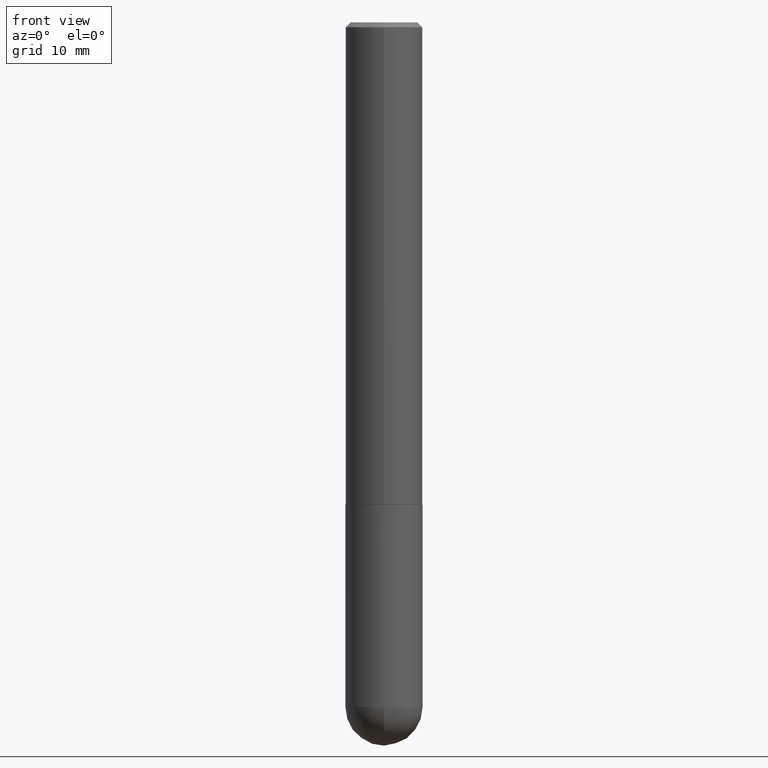
[diagram: clean part render]
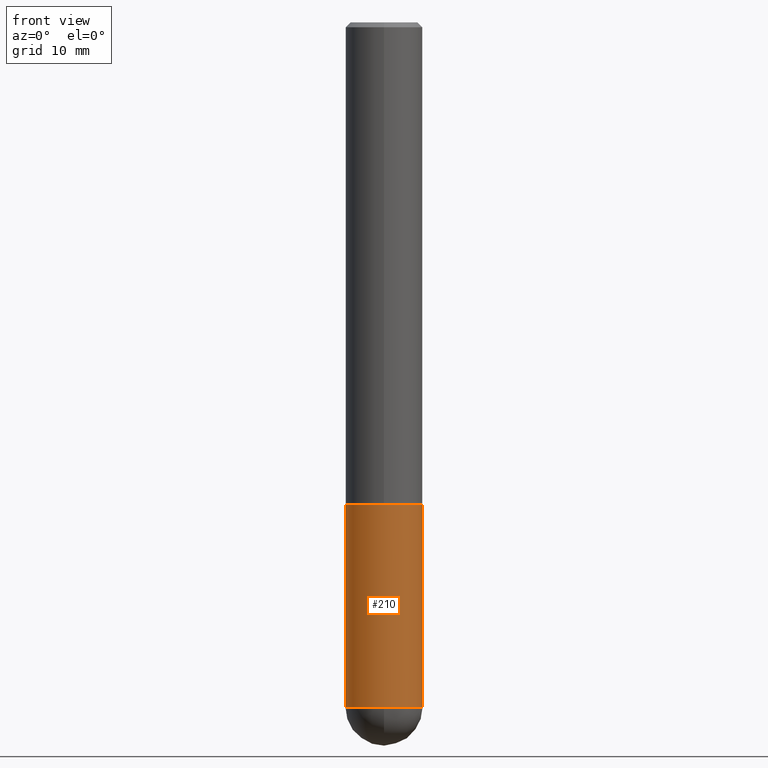
[diagram: same view with one face highlighted and labeled with its STEP entity id]
A machine part, front view. The second image highlights one B-rep face of the part: STEP entity #210.
In plain terms, the highlighted cylindrical surface (partial cylindrical patch) has radius 4.0005 mm, axis along (-0, 0, 1).
Its self-contained STEP definition (entity closure, byte-faithful):
#6 = LINE ( 'NONE', #11, #113 ) ;
#11 = CARTESIAN_POINT ( 'NONE',  ( -0.1575000000000000011, 1.119104808822157801E-15, -7.747322767151475583E-30 ) ) ;
#20 = ORIENTED_EDGE ( 'NONE', *, *, #337, .T. ) ;
#22 = DIRECTION ( 'NONE',  ( -2.445468806185136597E-29, 3.491481338843145583E-15, 1.000000000000000000 ) ) ;
#41 = DIRECTION ( 'NONE',  ( -2.445468806185136597E-29, 3.491481338843145583E-15, 1.000000000000000000 ) ) ;
#49 = VERTEX_POINT ( 'NONE', #281 ) ;
#56 = CARTESIAN_POINT ( 'NONE',  ( -0.1575000000000000011, -7.197254592168330052E-15, -2.795299999999999674 ) ) ;
#60 = CYLINDRICAL_SURFACE ( 'NONE', #112, 0.1575000000000000011 ) ;
#67 = EDGE_CURVE ( 'NONE', #405, #111, #395, .T. ) ;
#70 = CIRCLE ( 'NONE', #300, 0.1575000000000000011 ) ;
#79 = DIRECTION ( 'NONE',  ( -2.445468806185136597E-29, 3.491481338843145583E-15, 1.000000000000000000 ) ) ;
#98 = CARTESIAN_POINT ( 'NONE',  ( 0.1575000000000000011, -1.099816621735586889E-15, 7.679978421878598033E-30 ) ) ;
#111 = VERTEX_POINT ( 'NONE', #238 ) ;
#112 = AXIS2_PLACEMENT_3D ( 'NONE', #118, #271, #330 ) ;
#113 = VECTOR ( 'NONE', #382, 39.37007874015748143 ) ;
#118 = CARTESIAN_POINT ( 'NONE',  ( 0.000000000000000000, 0.000000000000000000, 0.000000000000000000 ) ) ;
#123 = ORIENTED_EDGE ( 'NONE', *, *, #299, .T. ) ;
#127 = DIRECTION ( 'NONE',  ( -2.445468806185136877E-29, 3.491481338843145188E-15, 1.000000000000000000 ) ) ;
#142 = ORIENTED_EDGE ( 'NONE', *, *, #251, .F. ) ;
#148 = DIRECTION ( 'NONE',  ( 1.000000000000000000, -6.982962677686268288E-15, 0.000000000000000000 ) ) ;
#165 = DIRECTION ( 'NONE',  ( 1.000000000000000000, -6.982962677686261977E-15, 0.000000000000000000 ) ) ;
#166 = CARTESIAN_POINT ( 'NONE',  ( 6.835818953929311707E-29, -9.759737786468243605E-15, -2.795299999999999674 ) ) ;
#168 = VERTEX_POINT ( 'NONE', #172 ) ;
#172 = CARTESIAN_POINT ( 'NONE',  ( 0.1575000000000000011, -9.416176022726072770E-15, -2.795299999999999674 ) ) ;
#174 = CIRCLE ( 'NONE', #365, 0.1575000000000000011 ) ;
#210 = ADVANCED_FACE ( 'NONE', ( #394 ), #60, .T. ) ;
#212 = ORIENTED_EDGE ( 'NONE', *, *, #67, .T. ) ;
#224 = VECTOR ( 'NONE', #127, 39.37007874015748143 ) ;
#238 = CARTESIAN_POINT ( 'NONE',  ( -1.119104808822091931E-15, -0.1575000000000101319, -2.795299999999998786 ) ) ;
#247 = VERTEX_POINT ( 'NONE', #354 ) ;
#251 = EDGE_CURVE ( 'NONE', #247, #49, #70, .T. ) ;
#255 = LINE ( 'NONE', #98, #224 ) ;
#262 = CARTESIAN_POINT ( 'NONE',  ( 6.835818953929311707E-29, -9.759737786468243605E-15, -2.795299999999999674 ) ) ;
#271 = DIRECTION ( 'NONE',  ( -2.445468806185136597E-29, 3.491481338843145583E-15, 1.000000000000000000 ) ) ;
#281 = CARTESIAN_POINT ( 'NONE',  ( 0.1575000000000000011, -7.972797637248318399E-15, -1.968499999999999694 ) ) ;
#290 = DIRECTION ( 'NONE',  ( 1.000000000000000000, -6.982962677686261977E-15, 0.000000000000000000 ) ) ;
#295 = ORIENTED_EDGE ( 'NONE', *, *, #359, .F. ) ;
#299 = EDGE_CURVE ( 'NONE', #168, #49, #255, .T. ) ;
#300 = AXIS2_PLACEMENT_3D ( 'NONE', #399, #22, #148 ) ;
#330 = DIRECTION ( 'NONE',  ( 1.000000000000000000, -6.982962677686265922E-15, 4.876176775795935232E-29 ) ) ;
#332 = AXIS2_PLACEMENT_3D ( 'NONE', #166, #79, #290 ) ;
#337 = EDGE_CURVE ( 'NONE', #111, #168, #174, .T. ) ;
#354 = CARTESIAN_POINT ( 'NONE',  ( -0.1575000000000000011, -7.197254592168330052E-15, -1.968499999999999694 ) ) ;
#359 = EDGE_CURVE ( 'NONE', #405, #247, #6, .T. ) ;
#365 = AXIS2_PLACEMENT_3D ( 'NONE', #262, #41, #165 ) ;
#368 = EDGE_LOOP ( 'NONE', ( #295, #212, #20, #123, #142 ) ) ;
#382 = DIRECTION ( 'NONE',  ( -2.445468806185136877E-29, 3.491481338843145188E-15, 1.000000000000000000 ) ) ;
#394 = FACE_OUTER_BOUND ( 'NONE', #368, .T. ) ;
#395 = CIRCLE ( 'NONE', #332, 0.1575000000000000011 ) ;
#399 = CARTESIAN_POINT ( 'NONE',  ( 4.813905344975440714E-29, -6.872981015512730918E-15, -1.968499999999999694 ) ) ;
#405 = VERTEX_POINT ( 'NONE', #56 ) ;